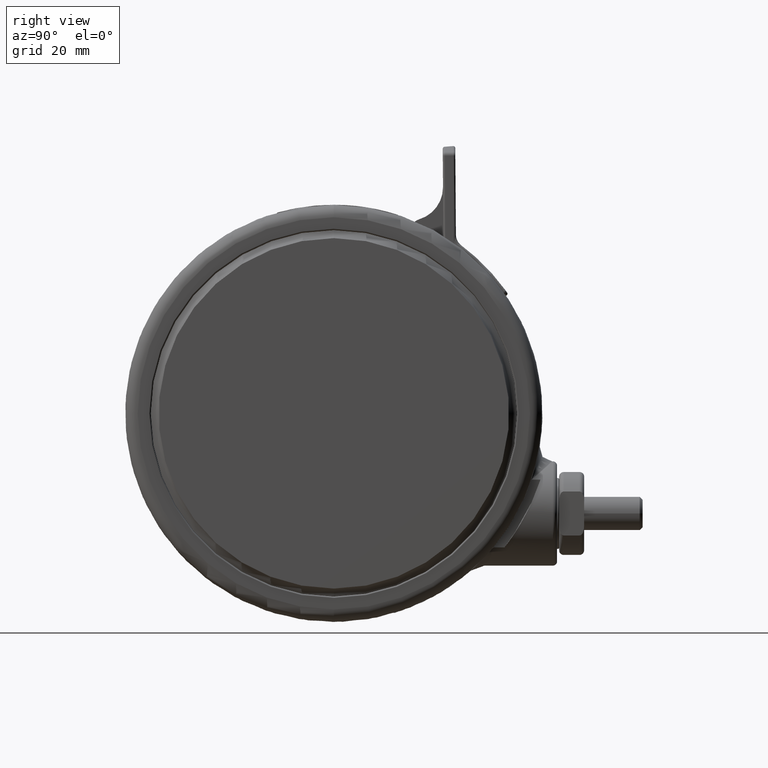
[diagram: clean part render]
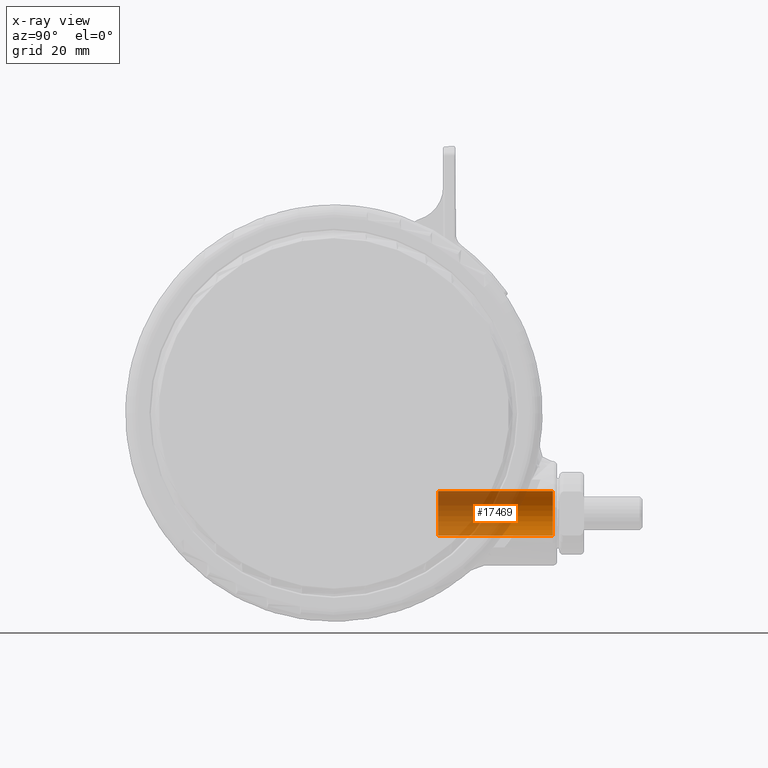
[diagram: x-ray — body ghosted, one internal face saturated and labeled with its STEP entity id]
A machine part, right view, then the same camera in x-ray: the body is ghosted and one INTERNAL B-rep face — a face not visible from any outside direction — is saturated and labeled: STEP entity #17469.
In plain terms, the highlighted cylindrical surface (edge-blend (fillet) strip) has radius 5.35 mm, axis along (0, 1, 0).
Its self-contained STEP definition (entity closure, byte-faithful):
#208 = ORIENTED_EDGE ( 'NONE', *, *, #32560, .F. ) ;
#275 = ORIENTED_EDGE ( 'NONE', *, *, #33065, .F. ) ;
#597 = VECTOR ( 'NONE', #48919, 1000.000000000000000 ) ;
#1803 = LINE ( 'NONE', #18743, #597 ) ;
#3007 = EDGE_LOOP ( 'NONE', ( #275, #44961, #9394, #208 ) ) ;
#3800 = VERTEX_POINT ( 'NONE', #10886 ) ;
#6750 = VERTEX_POINT ( 'NONE', #29671 ) ;
#7166 = FACE_OUTER_BOUND ( 'NONE', #3007, .T. ) ;
#7752 = AXIS2_PLACEMENT_3D ( 'NONE', #36913, #33133, #14226 ) ;
#8105 = DIRECTION ( 'NONE',  ( 2.360897160001558300E-016, -1.000000000000000000, 6.688773330916236600E-017 ) ) ;
#9394 = ORIENTED_EDGE ( 'NONE', *, *, #20440, .T. ) ;
#10886 = CARTESIAN_POINT ( 'NONE',  ( -29.34999999999999400, -52.50000000000000700, -24.29999999999995500 ) ) ;
#14226 = DIRECTION ( 'NONE',  ( 1.000000000000000000, 0.0000000000000000000, 0.0000000000000000000 ) ) ;
#16309 = VERTEX_POINT ( 'NONE', #40630 ) ;
#17469 = ADVANCED_FACE ( 'NONE', ( #7166 ), #34955, .F. ) ;
#18292 = CIRCLE ( 'NONE', #34339, 5.350000000000000500 ) ;
#18743 = CARTESIAN_POINT ( 'NONE',  ( -18.64999999999999100, -61.36639215513579900, -24.29999999999995100 ) ) ;
#19173 = VERTEX_POINT ( 'NONE', #43644 ) ;
#19197 = AXIS2_PLACEMENT_3D ( 'NONE', #21938, #48300, #25750 ) ;
#20440 = EDGE_CURVE ( 'NONE', #3800, #6750, #32318, .T. ) ;
#21938 = CARTESIAN_POINT ( 'NONE',  ( -23.99999999999999300, -52.50000000000000700, -24.29999999999995100 ) ) ;
#22199 = DIRECTION ( 'NONE',  ( 2.360897160001558300E-016, -1.000000000000000000, 6.688773330916236600E-017 ) ) ;
#23141 = CARTESIAN_POINT ( 'NONE',  ( -29.34999999999999400, -61.36639215513579900, -24.29999999999995100 ) ) ;
#25750 = DIRECTION ( 'NONE',  ( 1.000000000000000000, 0.0000000000000000000, 0.0000000000000000000 ) ) ;
#29671 = CARTESIAN_POINT ( 'NONE',  ( -18.64999999999999100, -52.50000000000000700, -24.29999999999995100 ) ) ;
#30564 = EDGE_CURVE ( 'NONE', #19173, #3800, #33379, .T. ) ;
#32188 = VECTOR ( 'NONE', #8105, 1000.000000000000000 ) ;
#32318 = CIRCLE ( 'NONE', #19197, 5.350000000000000500 ) ;
#32560 = EDGE_CURVE ( 'NONE', #16309, #6750, #1803, .T. ) ;
#33065 = EDGE_CURVE ( 'NONE', #19173, #16309, #18292, .T. ) ;
#33133 = DIRECTION ( 'NONE',  ( 2.360897160001558300E-016, -1.000000000000000000, 6.688773330916236600E-017 ) ) ;
#33379 = LINE ( 'NONE', #23141, #32188 ) ;
#34339 = AXIS2_PLACEMENT_3D ( 'NONE', #44723, #22199, #48547 ) ;
#34955 = CYLINDRICAL_SURFACE ( 'NONE', #7752, 5.350000000000000500 ) ;
#36913 = CARTESIAN_POINT ( 'NONE',  ( -23.99999999999999300, -61.36639215513579900, -24.29999999999995100 ) ) ;
#40630 = CARTESIAN_POINT ( 'NONE',  ( -18.65000000000000200, -25.00000000000000700, -24.29999999999995100 ) ) ;
#43644 = CARTESIAN_POINT ( 'NONE',  ( -29.34999999999999100, -25.00000000000000700, -24.29999999999995100 ) ) ;
#44723 = CARTESIAN_POINT ( 'NONE',  ( -23.99999999999999600, -25.00000000000000700, -24.29999999999995100 ) ) ;
#44961 = ORIENTED_EDGE ( 'NONE', *, *, #30564, .T. ) ;
#48300 = DIRECTION ( 'NONE',  ( 2.360897160001558300E-016, -1.000000000000000000, 6.688773330916236600E-017 ) ) ;
#48547 = DIRECTION ( 'NONE',  ( 1.000000000000000000, 0.0000000000000000000, 0.0000000000000000000 ) ) ;
#48919 = DIRECTION ( 'NONE',  ( 2.360897160001558300E-016, -1.000000000000000000, 6.688773330916236600E-017 ) ) ;